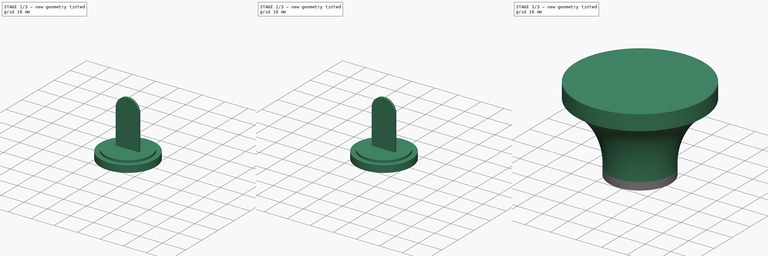
[diagram: build sequence overview — one tinted view per stage of 3, left to right]
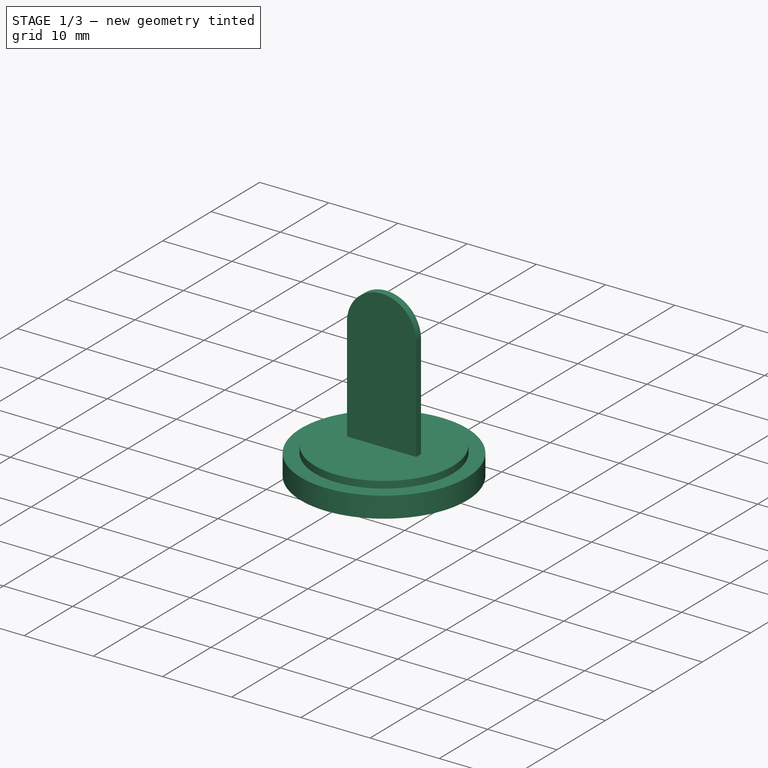
[diagram: stage 1 of 3 — iso view after this stage's code; geometry added in this stage tinted green]
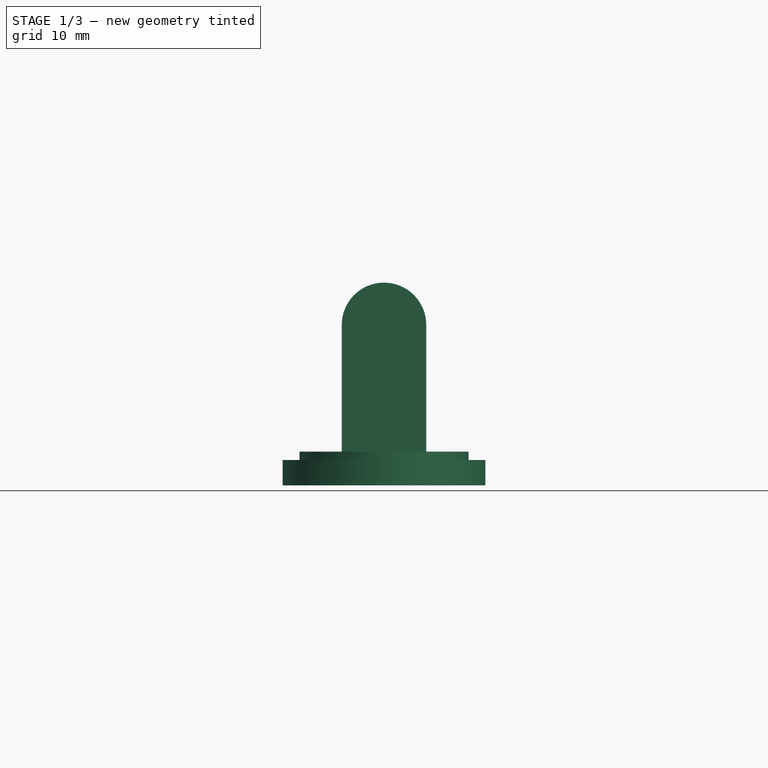
[diagram: stage 1 of 3 — front view after this stage's code; geometry added in this stage tinted green]
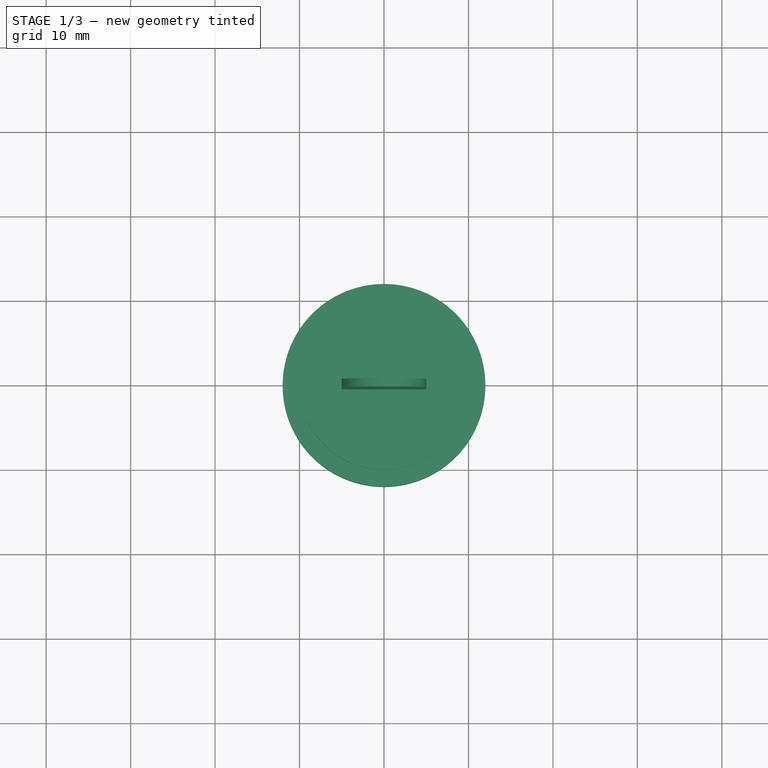
[diagram: stage 1 of 3 — top view after this stage's code; geometry added in this stage tinted green]
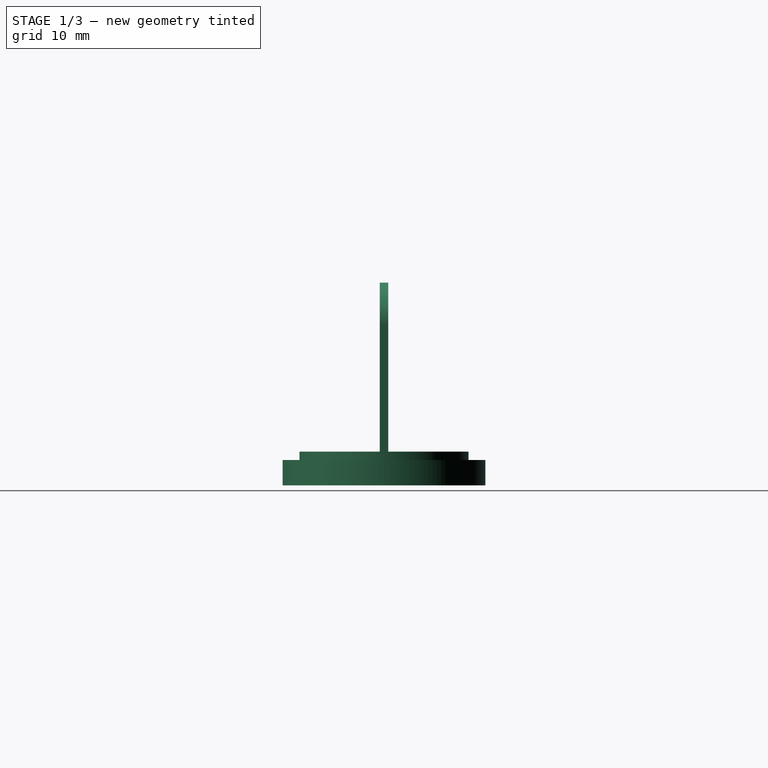
[diagram: stage 1 of 3 — right view after this stage's code; geometry added in this stage tinted green]
FCSTD DOCUMENT  (FreeCAD 0.18R16146 (Git))
Label: Spoon_Stand
License: All rights reserved
LicenseURL: http://en.wikipedia.org/wiki/All_rights_reserved
objects: Sketcher::SketchObject×5, PartDesign::Body×4, App::Part×4, PartDesign::Revolution×3, PartDesign::Pocket×1, PartDesign::Pad×1
note: 19 computed .brp shape members not serialized (recipe doc carries the construction recipe); baked Part::Feature solids carry a one-line shape summary decoded from their .brp

FEATURE [Sketcher::SketchObject] Sketch
  MapMode = 5
  Placement = pos=(0,0,0) rot=(1,0,0;1.5708rad)
  Support = -> [XZ_Plane001]
  sketch-geometry (6):
    g0: LineSegment StartX=0 StartY=0 StartZ=0 EndX=10 EndY=0 EndZ=0
    g1: LineSegment StartX=10 StartY=0 StartZ=0 EndX=10 EndY=-1 EndZ=0
    g2: LineSegment StartX=10 StartY=-1 StartZ=0 EndX=12 EndY=-1 EndZ=0
    g3: LineSegment StartX=12 StartY=-1 StartZ=0 EndX=12 EndY=-4 EndZ=0
    g4: LineSegment StartX=12 StartY=-4 StartZ=0 EndX=0 EndY=-4 EndZ=0
    g5: LineSegment StartX=0 StartY=0 StartZ=0 EndX=0 EndY=-4 EndZ=0
  constraints (17):
    c: Coincident(g0,g-1)
    c: PointOnObject(g0,g-1)
    c: Coincident(g1,g0)
    c: Vertical(g1)
    c: Coincident(g2,g1)
    c: Horizontal(g2)
    c: Coincident(g3,g2)
    c: Vertical(g3)
    c: Coincident(g4,g3)
    c: PointOnObject(g4,g-2)
    c: Horizontal(g4)
    c: Coincident(g5,g0)
    c: Coincident(g5,g4)
    c: DistanceY(g1,g1) = 1
    c: DistanceX(g0,g0) = 10
    c: DistanceX(g2,g2) = 2
    c: DistanceY(g3,g3) = 3
FEATURE [PartDesign::Revolution] Revolution
  Angle = 360
  Axis = (0,2e-16,1)
  Base = (0,0,0)
  Placement = pos=(0,0,0) rot=(1,0,0;1.5708rad)
  Profile = -> Sketch
  ReferenceAxis = -> Sketch [V_Axis]
  Reversed = true
FEATURE [PartDesign::Body] Body
  Group = -> [Sketch,Revolution,Sketch001,Pocket]
  Origin = -> Origin001
  Tip = -> Pocket
FEATURE [App::Part] Part  label="Top"
  Group = -> [Body]
  Origin = -> Origin
FEATURE [Sketcher::SketchObject] Sketch004
  MapMode = 5
  Placement = pos=(0,0,0) rot=(1,0,0;1.5708rad)
  Support = -> [XZ_Plane007]
  sketch-geometry (4):
    g0: LineSegment StartX=-5 StartY=-4 StartZ=0 EndX=5 EndY=-4 EndZ=0
    g1: LineSegment StartX=-5 StartY=-4 StartZ=0 EndX=-5 EndY=15 EndZ=0
    g2: LineSegment StartX=5 StartY=-4 StartZ=0 EndX=5 EndY=15 EndZ=0
    g3: ArcOfCircle CenterX=1e-16 CenterY=15 CenterZ=0 NormalX=0 NormalY=0 NormalZ=1 AngleXU=0 Radius=5 StartAngle=0 EndAngle=3.14159
  constraints (10):
    c: Coincident(g1,g0)
    c: Vertical(g1)
    c: Coincident(g2,g0)
    c: Vertical(g2)
    c: Symmetric(g0,g0,g-2)
    c: DistanceX(g0,g0) = 10
    c: Tangent(g3,g2) = -1.5708
    c: DistanceY(g0,g-1) = 4
    c: Tangent(g3,g1) = 1.5708
    c: DistanceY(g-1,g3) = 15
FEATURE [PartDesign::Pad] Pad
  Length = 1
  Length2 = 100
  Midplane = true
  Placement = pos=(0,0,0) rot=(1,0,0;1.5708rad)
  Profile = -> Sketch004
  Type = 0
FEATURE [PartDesign::Body] Body003
  Group = -> [Sketch004,Pad]
  Origin = -> Origin007
  Tip = -> Pad
FEATURE [App::Part] Part003  label="Cut"
  Group = -> [Body003]
  Origin = -> Origin006
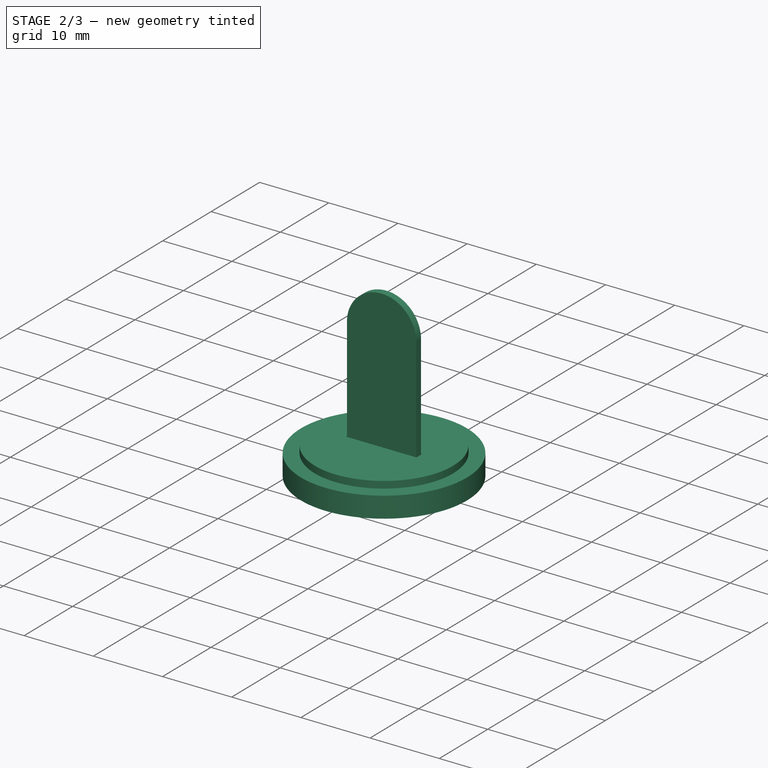
[diagram: stage 2 of 3 — iso view after this stage's code; geometry added in this stage tinted green]
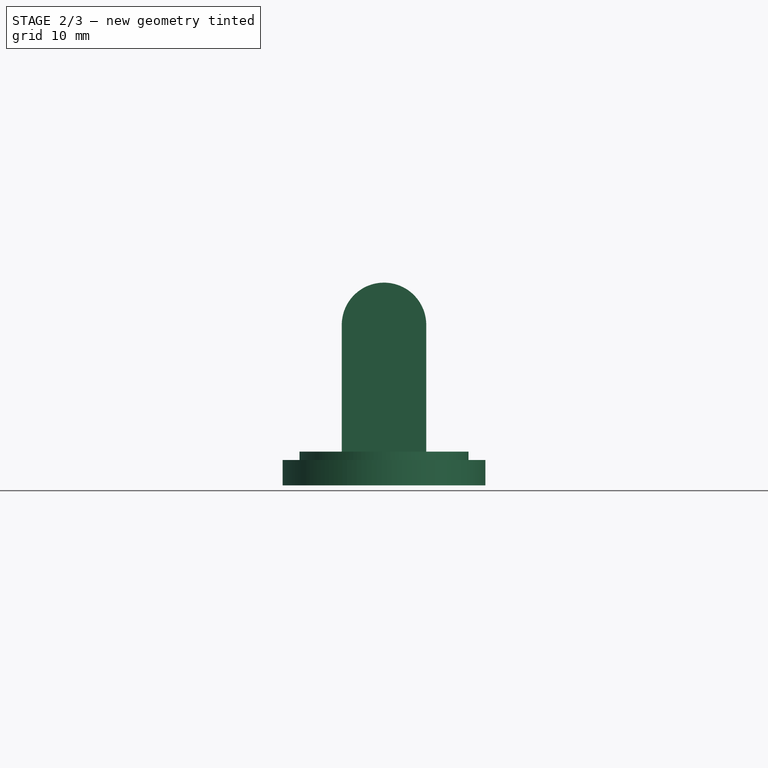
[diagram: stage 2 of 3 — front view after this stage's code; geometry added in this stage tinted green]
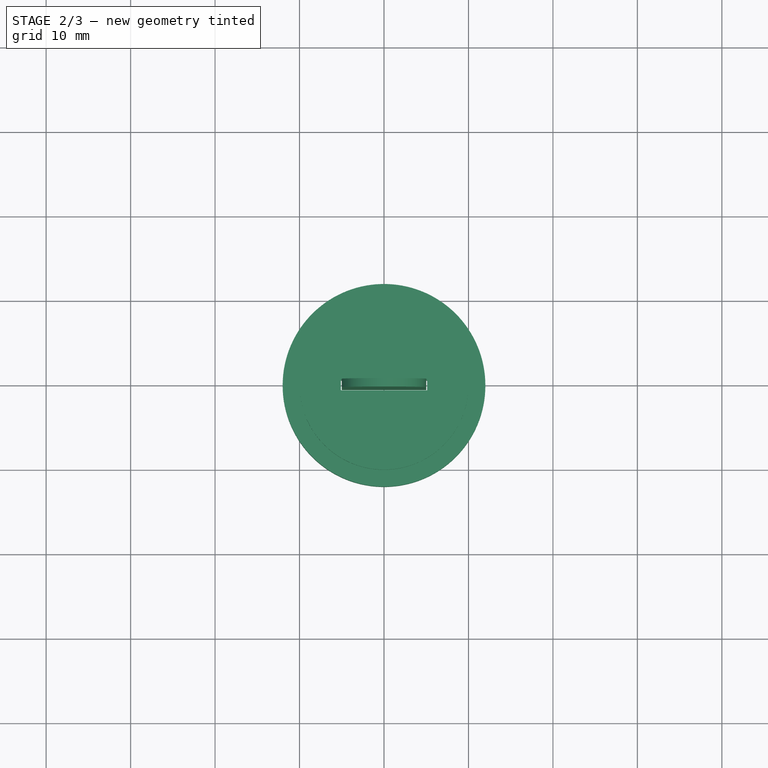
[diagram: stage 2 of 3 — top view after this stage's code; geometry added in this stage tinted green]
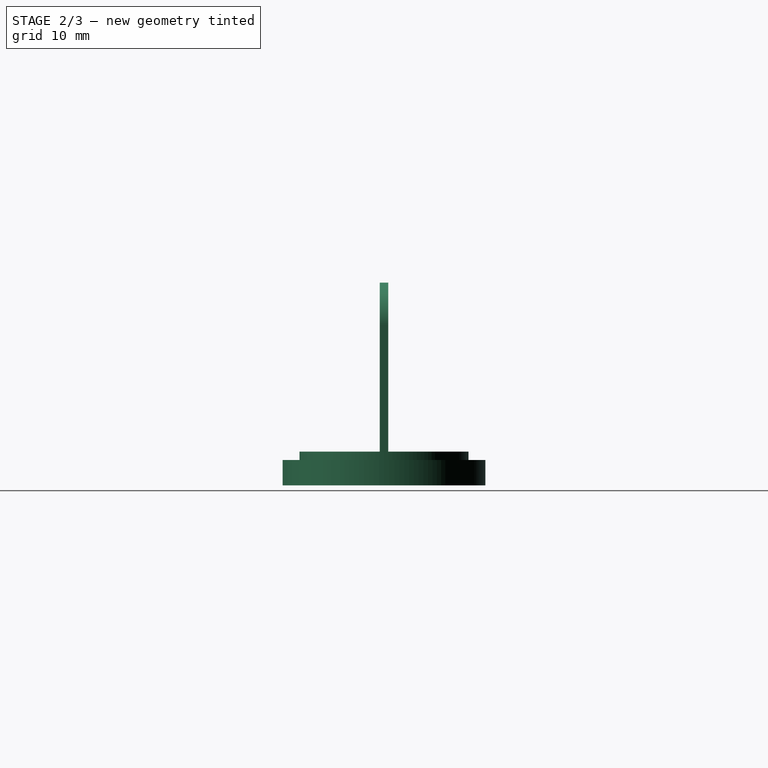
[diagram: stage 2 of 3 — right view after this stage's code; geometry added in this stage tinted green]
FEATURE [PartDesign::Body] Body002
  Group = -> [Sketch003,Revolution002]
  Origin = -> Origin005
  Tip = -> Revolution002
FEATURE [App::Part] Part002  label="Bottom"
  Group = -> [Body002]
  Origin = -> Origin003
FEATURE [PartDesign::Pocket] Pocket
  BaseFeature = -> Revolution
  Length = 5
  Length2 = 100
  Placement = pos=(0,0,0) rot=(1,0,0;1.5708rad)
  Profile = -> Sketch001
  Type = 0
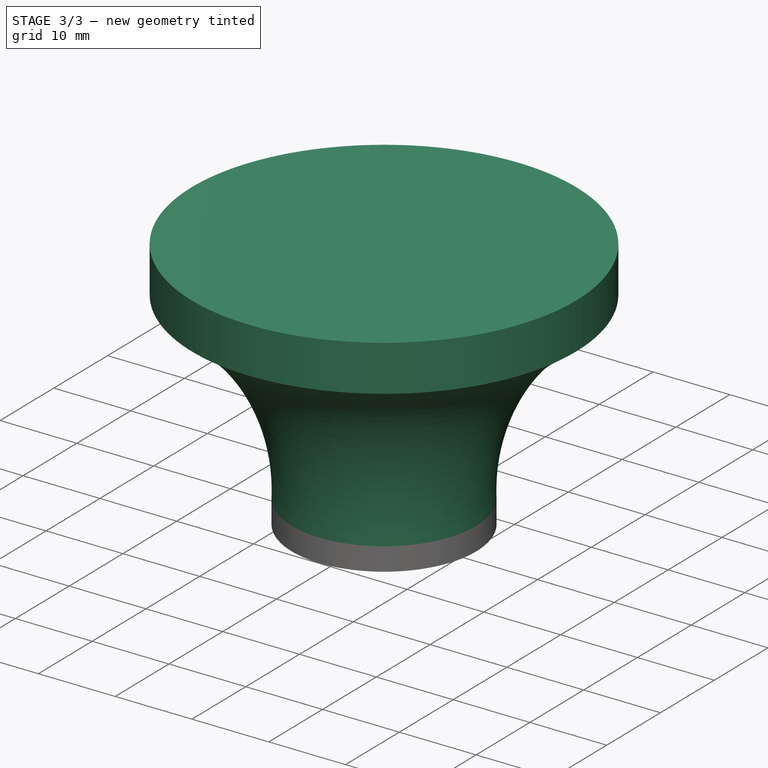
[diagram: stage 3 of 3 — iso view after this stage's code; geometry added in this stage tinted green]
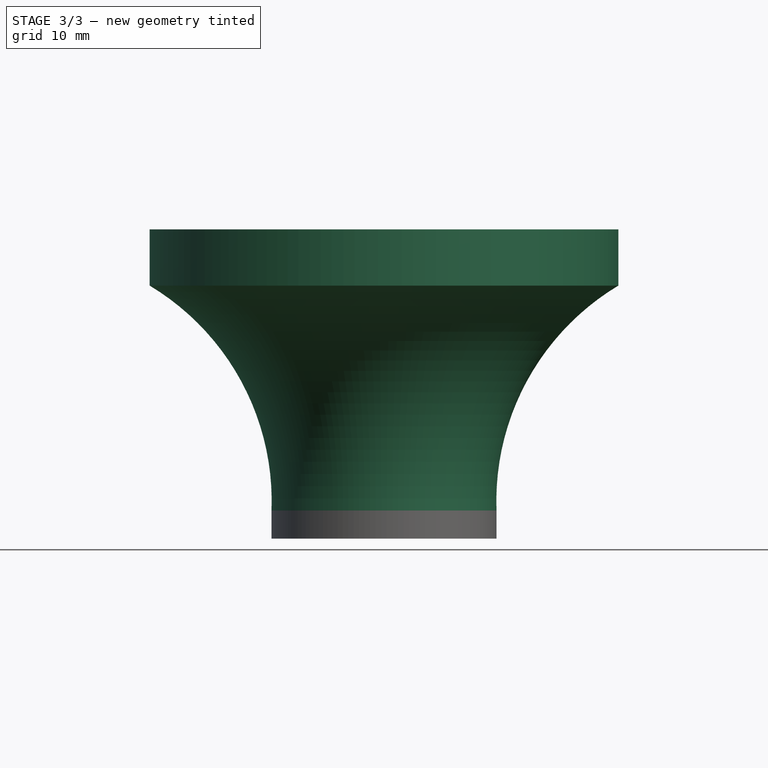
[diagram: stage 3 of 3 — front view after this stage's code; geometry added in this stage tinted green]
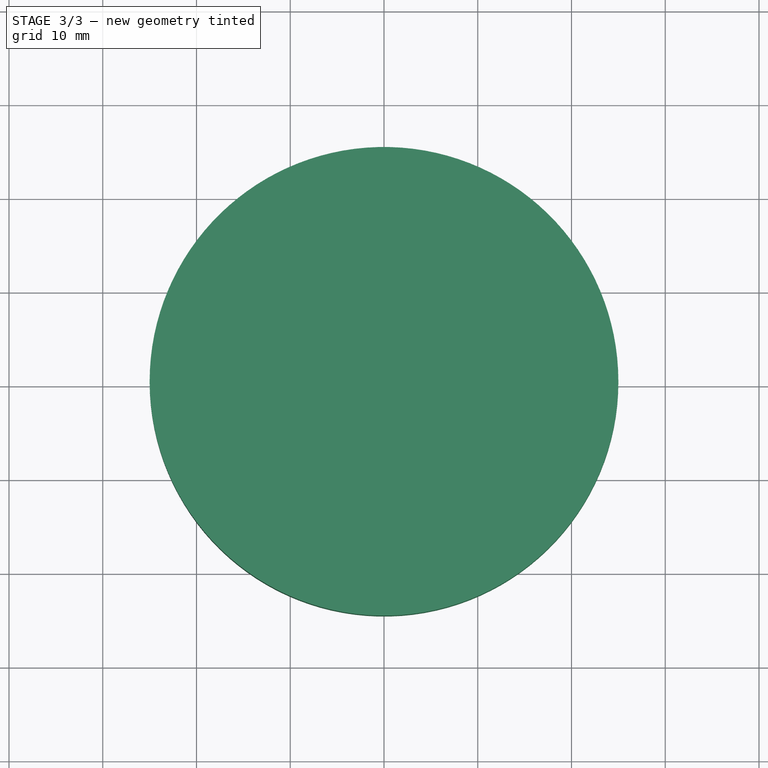
[diagram: stage 3 of 3 — top view after this stage's code; geometry added in this stage tinted green]
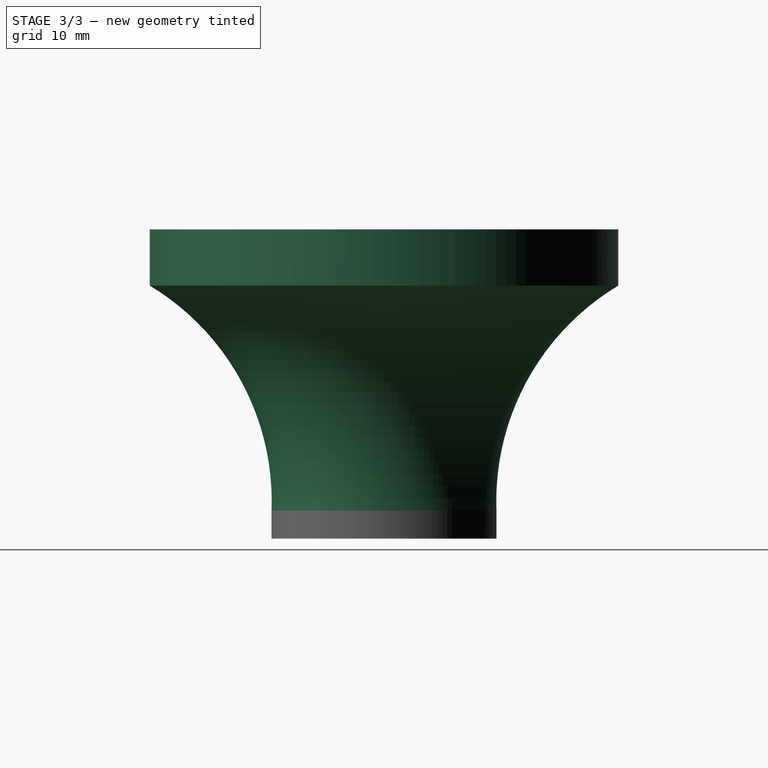
[diagram: stage 3 of 3 — right view after this stage's code; geometry added in this stage tinted green]
FEATURE [Sketcher::SketchObject] Sketch001
  MapMode = 5
  Placement = pos=(0,0,0) rot=(0,0,1;3.14159rad)
  Support = -> [Revolution]
  sketch-geometry (4):
    g0: LineSegment StartX=-5.1 StartY=0.6 StartZ=0 EndX=5.1 EndY=0.6 EndZ=0
    g1: LineSegment StartX=5.1 StartY=0.6 StartZ=0 EndX=5.1 EndY=-0.6 EndZ=0
    g2: LineSegment StartX=5.1 StartY=-0.6 StartZ=0 EndX=-5.1 EndY=-0.6 EndZ=0
    g3: LineSegment StartX=-5.1 StartY=-0.6 StartZ=0 EndX=-5.1 EndY=0.6 EndZ=0
  constraints (10):
    c: Coincident(g0,g1)
    c: Coincident(g1,g2)
    c: Coincident(g2,g3)
    c: Coincident(g3,g0)
    c: Horizontal(g0)
    c: Vertical(g3)
    c: Symmetric(g2,g1,g-2)
    c: Symmetric(g0,g1,g-1)
    c: DistanceX(g0,g0) = 10.2
    c: DistanceY(g3,g3) = 1.2
FEATURE [Sketcher::SketchObject] Sketch002
  MapMode = 5
  Placement = pos=(0,0,0) rot=(1,0,0;1.5708rad)
  Support = -> [XZ_Plane004]
  sketch-geometry (8):
    g0: LineSegment StartX=10.2 StartY=4.5e-15 StartZ=0 EndX=10.2 EndY=-1 EndZ=0
    g1: LineSegment StartX=10.2 StartY=-1 StartZ=0 EndX=12 EndY=-1 EndZ=0
    g2: ArcOfCircle CenterX=46.9878 CenterY=0 CenterZ=0 NormalX=0 NormalY=0 NormalZ=1 AngleXU=0 Radius=36.7878 StartAngle=2.39441 EndAngle=3.14159
    g3: LineSegment StartX=20 StartY=25 StartZ=0 EndX=22 EndY=25 EndZ=0
    g4: LineSegment StartX=22 StartY=25 StartZ=0 EndX=22 EndY=26 EndZ=0
    g5: LineSegment StartX=22 StartY=26 StartZ=0 EndX=25 EndY=26 EndZ=0
    g6: ArcOfCircle CenterX=38.8077 CenterY=0 CenterZ=0 NormalX=0 NormalY=0 NormalZ=1 AngleXU=0 Radius=26.8263 StartAngle=2.11146 EndAngle=3.17888
    g7: LineSegment StartX=25 StartY=26 StartZ=0 EndX=25 EndY=23 EndZ=0
  constraints (26):
    c: PointOnObject(g0,g-1)
    c: Coincident(g1,g0)
    c: Horizontal(g1)
    c: DistanceX(g-1,g0) = 10.2
    c: Vertical(g0)
    c: DistanceX(g1,g1) = 1.8
    c: DistanceY(g0,g0) = 1
    c: PointOnObject(g2,g-1)
    c: DistanceX(g2) = 20
    c: Coincident(g2,g0)
    c: Coincident(g3,g2)
    c: Horizontal(g3)
    c: Coincident(g4,g3)
    c: Coincident(g5,g4)
    c: Horizontal(g5)
    c: Vertical(g4)
    c: DistanceX(g3,g3) = 2
    c: DistanceY(g4,g4) = 1
    c: DistanceX(g5,g5) = 3
    c: PointOnObject(g6,g-1)
    c: Coincident(g6,g1)
    c: Coincident(g7,g5)
    c: Coincident(g7,g6)
    c: Vertical(g7)
    c: DistanceY(g7,g7) = 3
    c: DistanceY(g-1,g2) = 25
FEATURE [PartDesign::Revolution] Revolution001
  Angle = 360
  Axis = (0,-2e-16,1)
  Base = (0,0,0)
  Placement = pos=(0,0,0) rot=(1,0,0;1.5708rad)
  Profile = -> Sketch002
  ReferenceAxis = -> Sketch002 [V_Axis]
  Reversed = true
FEATURE [PartDesign::Body] Body001
  Group = -> [Sketch002,Revolution001]
  Origin = -> Origin004
  Tip = -> Revolution001
FEATURE [App::Part] Part001  label="Side"
  Group = -> [Body001]
  Origin = -> Origin002
FEATURE [Sketcher::SketchObject] Sketch003
  MapMode = 5
  Placement = pos=(0,0,0) rot=(1,0,0;1.5708rad)
  Support = -> [XZ_Plane005]
  sketch-geometry (6):
    g0: LineSegment StartX=21.8 StartY=25 StartZ=0 EndX=0 EndY=25 EndZ=0
    g1: LineSegment StartX=21.8 StartY=25 StartZ=0 EndX=21.8 EndY=26 EndZ=0
    g2: LineSegment StartX=21.8 StartY=26 StartZ=0 EndX=25 EndY=26 EndZ=0
    g3: LineSegment StartX=25 StartY=26 StartZ=0 EndX=25 EndY=29 EndZ=0
    g4: LineSegment StartX=25 StartY=29 StartZ=0 EndX=0 EndY=29 EndZ=0
    g5: LineSegment StartX=0 StartY=25 StartZ=0 EndX=0 EndY=29 EndZ=0
  constraints (18):
    c: PointOnObject(g0,g-2)
    c: Horizontal(g0)
    c: DistanceY(g-1,g0) = 25
    c: DistanceX(g0,g0) = 21.8
    c: Coincident(g1,g0)
    c: Vertical(g1)
    c: Coincident(g2,g1)
    c: Horizontal(g2)
    c: DistanceY(g1,g1) = 1
    c: DistanceX(g2,g2) = 3.2
    c: Coincident(g3,g2)
    c: Vertical(g3)
    c: Coincident(g4,g3)
    c: Horizontal(g4)
    c: Coincident(g5,g0)
    c: Vertical(g5)
    c: Coincident(g4,g5)
    c: DistanceY(g3,g3) = 3
FEATURE [PartDesign::Revolution] Revolution002
  Angle = 360
  Axis = (0,-2e-16,1)
  Base = (0,0,0)
  Placement = pos=(0,0,0) rot=(1,0,0;1.5708rad)
  Profile = -> Sketch003
  ReferenceAxis = -> Sketch003 [V_Axis]
  Reversed = true
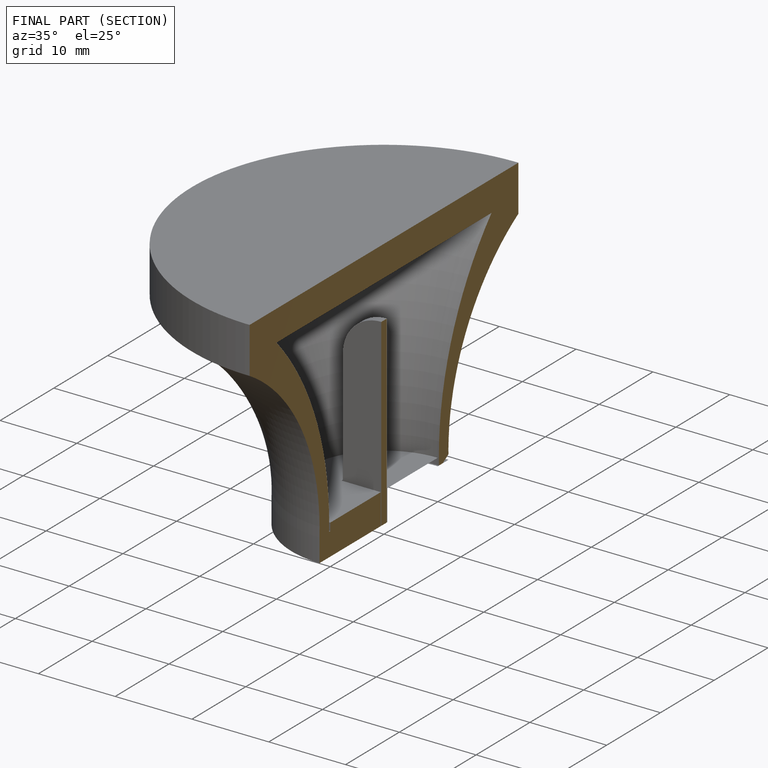
[diagram: finished part — half-section view (interior)]
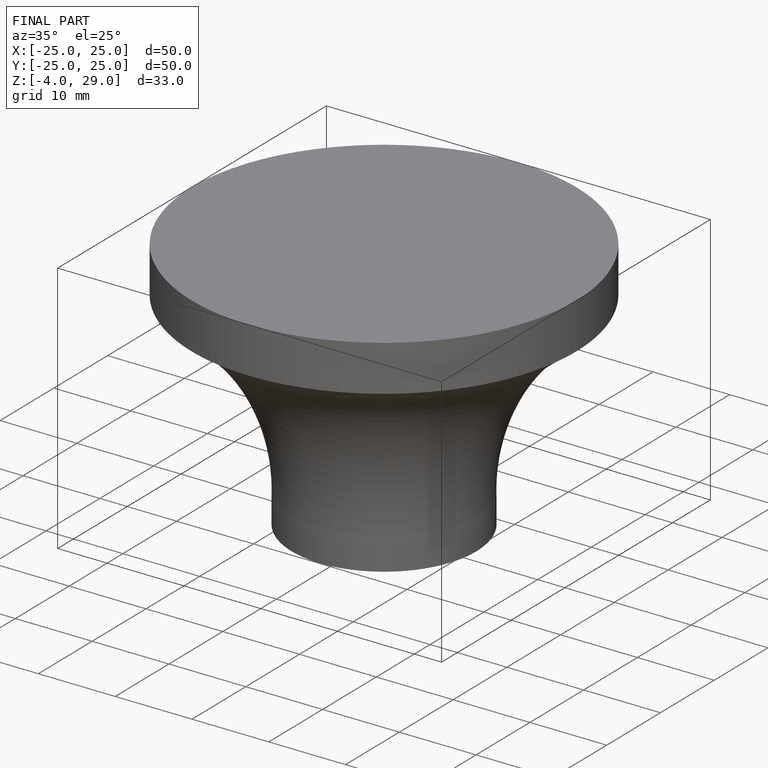
[diagram: finished part — iso view with bounding-box wireframe]
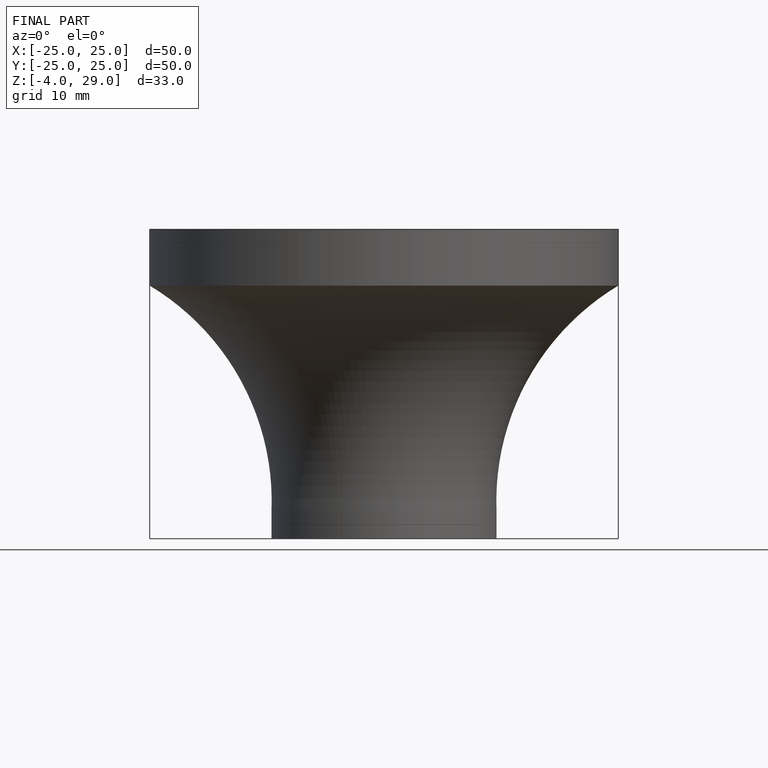
[diagram: finished part — front view with bounding-box wireframe]
